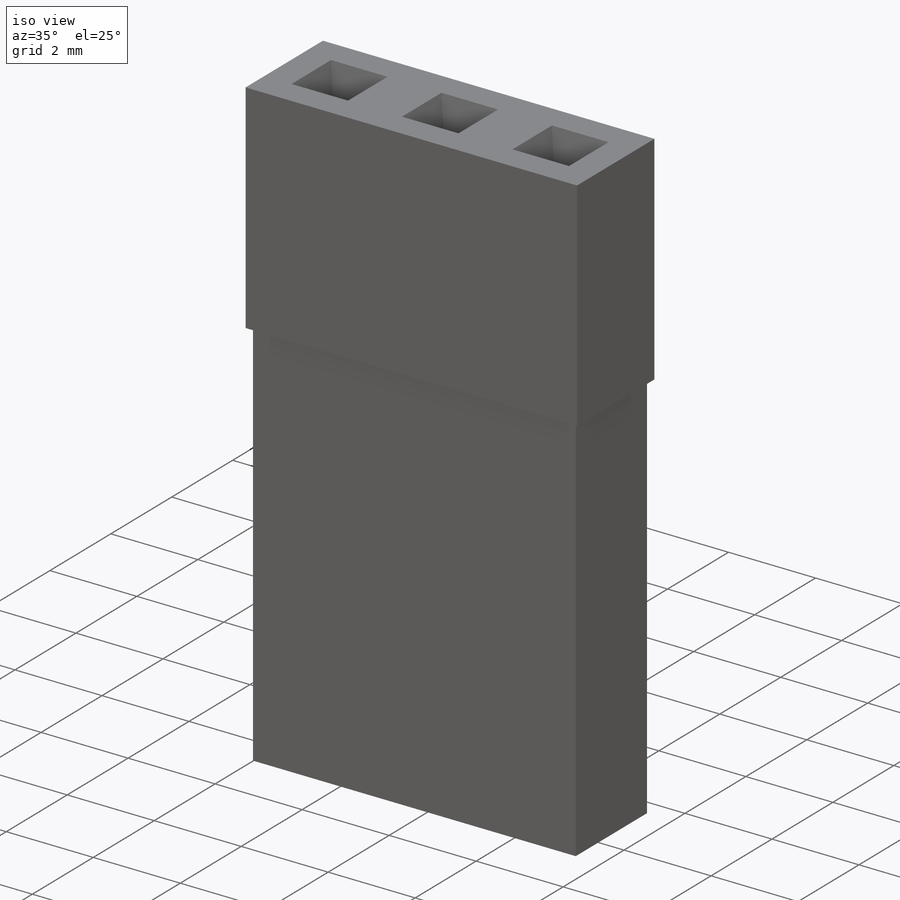
[diagram: iso view]
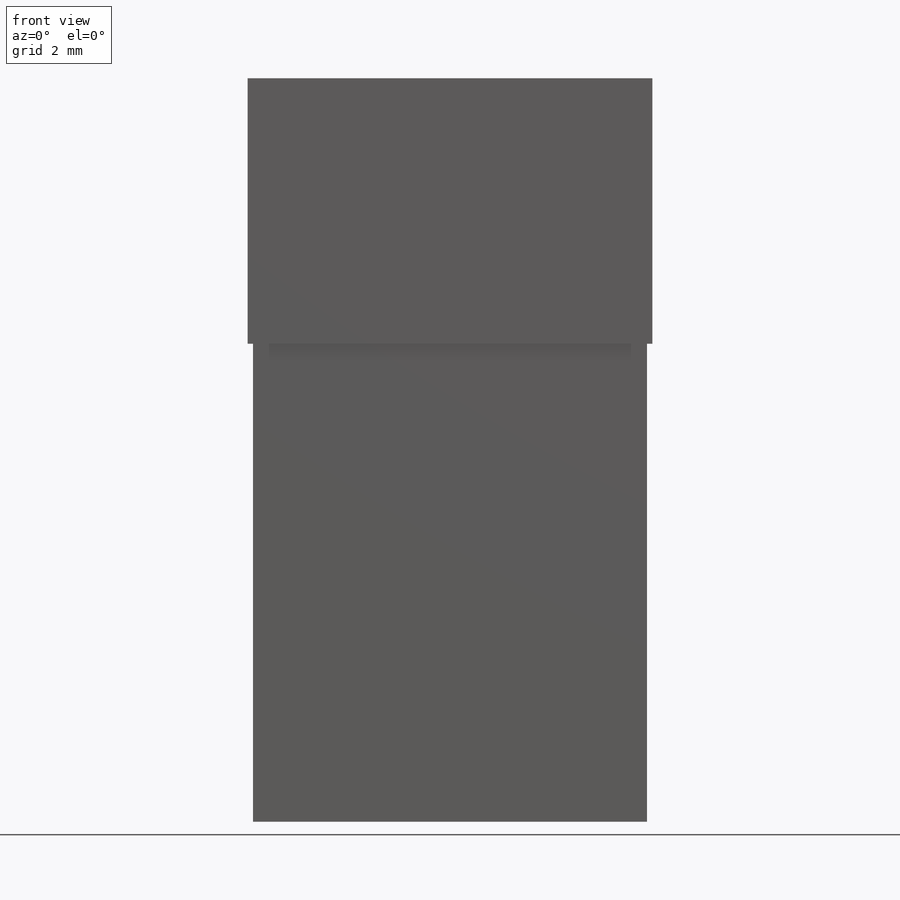
[diagram: front view]
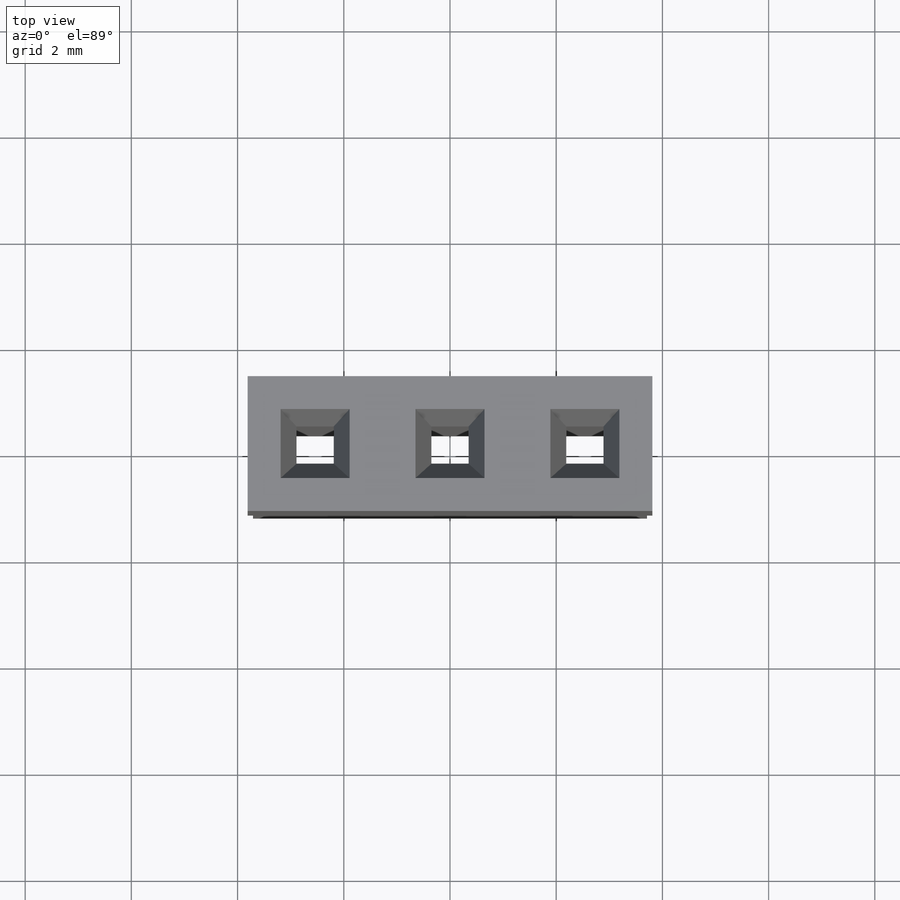
[diagram: top view]
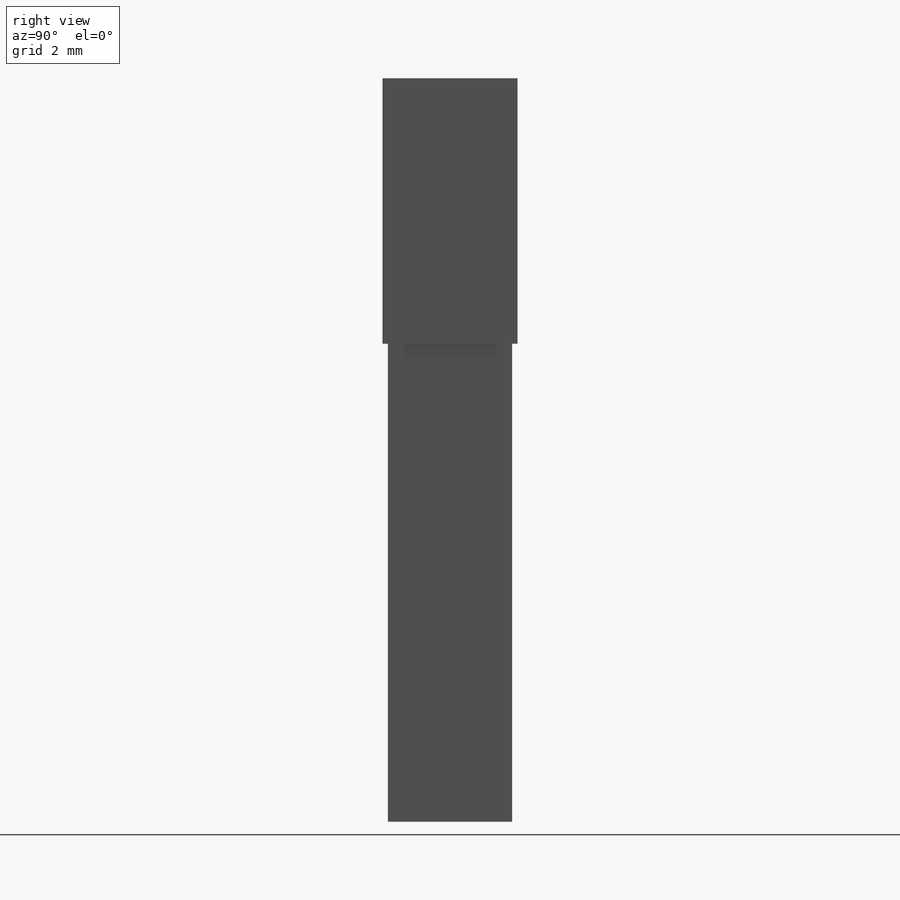
[diagram: right view]
SOLIDWORKS PART (.sldprt)
format: sldprt  version: not decoded by parser v0  size: 178,176 bytes
history: native  units: mm
features: plane x3, sketch x2, material x1, extrude x1, cut_extrude x1, chamfer x1 (+9 scaffold rows collapsed)
feature tree (18):
  scaffold x9  (default folders/planes/origin — collapsed)
  material  "ABS"
  plane  "Ebene vorne"
  plane  "Ebene oben"
  plane  "Ebene rechts"
  sketch  "Skizze1"  dims[D1=2.54mm D2=7.62mm D3=0.7mm D4=2.54mm]
  extrude  "Aufsatz-Linear austragen1"  Depth=14mm
  sketch  "Skizze3"  dims[D1=0.1mm]
  cut_extrude  "Schnitt-Linear austragen1"  Depth=9mm
  chamfer  "Fase1"  Distance=0.3mm Angle=80deg
decode coverage: 5 of 5 modeling features carry decoded parameters
note: suppression state not decoded; provenance and decode notes live in map.json
